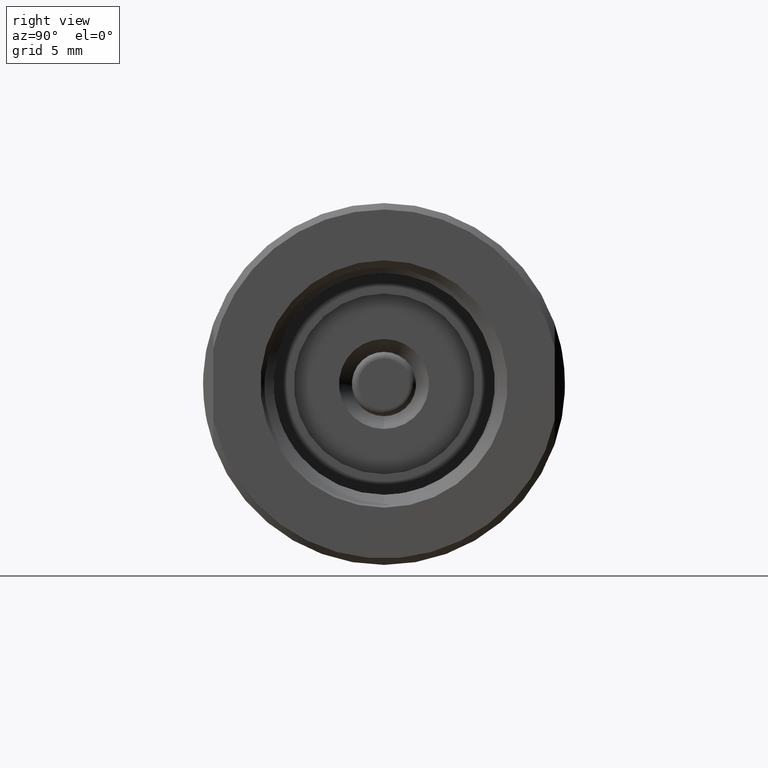
[diagram: clean part render]
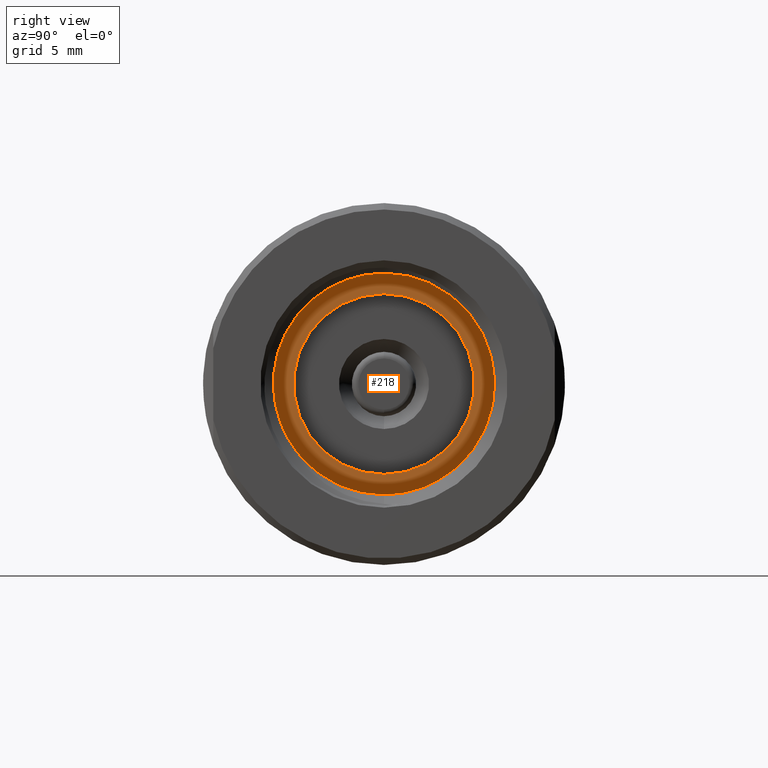
[diagram: same view with one face highlighted and labeled with its STEP entity id]
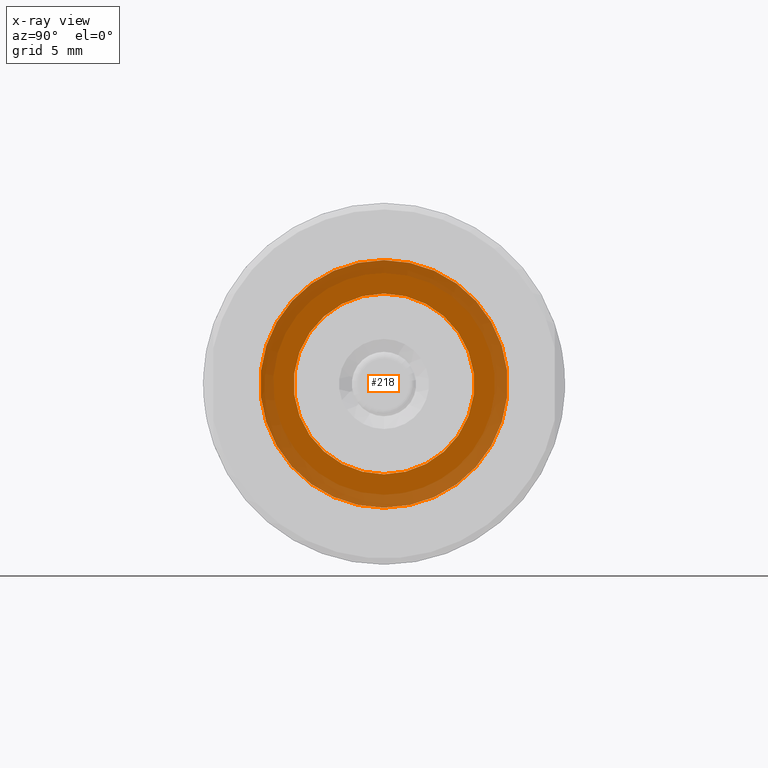
[diagram: x-ray of the same camera — body ghosted, the highlighted face saturated]
A machine part, right view. The second image highlights one B-rep face of the part: STEP entity #218.
The next image is the same camera in x-ray: the body ghosted, the highlighted face saturated — about 42% of this face is hidden behind the body in this view.
In plain terms, the highlighted planar face has unit normal (1, 0, 0).
Its self-contained STEP definition (entity closure, byte-faithful):
#86 = CIRCLE ( 'NONE', #477, 0.3850000000000001199 ) ;
#218 = ADVANCED_FACE ( 'NONE', ( #4071, #10511 ), #7800, .T. ) ;
#356 = DIRECTION ( 'NONE',  ( -1.000000000000000000, -0.0000000000000000000, -0.0000000000000000000 ) ) ;
#477 = AXIS2_PLACEMENT_3D ( 'NONE', #10318, #5555, #6521 ) ;
#711 = AXIS2_PLACEMENT_3D ( 'NONE', #10399, #356, #6852 ) ;
#896 = CIRCLE ( 'NONE', #711, 0.2810000000000001386 ) ;
#1375 = DIRECTION ( 'NONE',  ( 0.0000000000000000000, 0.0000000000000000000, -1.000000000000000000 ) ) ;
#1715 = CARTESIAN_POINT ( 'NONE',  ( 0.5000000000000000000, 0.0000000000000000000, 0.0000000000000000000 ) ) ;
#1790 = EDGE_LOOP ( 'NONE', ( #5705, #10188 ) ) ;
#1829 = DIRECTION ( 'NONE',  ( 0.0000000000000000000, 0.0000000000000000000, 1.000000000000000000 ) ) ;
#1956 = VERTEX_POINT ( 'NONE', #10958 ) ;
#2442 = AXIS2_PLACEMENT_3D ( 'NONE', #1715, #10911, #1829 ) ;
#3009 = CIRCLE ( 'NONE', #2442, 0.2810000000000001386 ) ;
#3050 = EDGE_LOOP ( 'NONE', ( #10070, #8534 ) ) ;
#3263 = CARTESIAN_POINT ( 'NONE',  ( 0.5000000000000000000, 3.441257505604064753E-17, -0.2810000000000001941 ) ) ;
#4018 = VERTEX_POINT ( 'NONE', #6865 ) ;
#4071 = FACE_BOUND ( 'NONE', #3050, .T. ) ;
#4287 = DIRECTION ( 'NONE',  ( 0.0000000000000000000, 0.0000000000000000000, 1.000000000000000000 ) ) ;
#5555 = DIRECTION ( 'NONE',  ( -1.000000000000000000, -0.0000000000000000000, -0.0000000000000000000 ) ) ;
#5607 = VERTEX_POINT ( 'NONE', #11824 ) ;
#5705 = ORIENTED_EDGE ( 'NONE', *, *, #7639, .F. ) ;
#5928 = CARTESIAN_POINT ( 'NONE',  ( 0.5000000000000000000, 0.0000000000000000000, 0.0000000000000000000 ) ) ;
#6521 = DIRECTION ( 'NONE',  ( 0.0000000000000000000, 0.0000000000000000000, 1.000000000000000000 ) ) ;
#6813 = AXIS2_PLACEMENT_3D ( 'NONE', #9944, #7299, #4287 ) ;
#6852 = DIRECTION ( 'NONE',  ( 0.0000000000000000000, 0.0000000000000000000, 1.000000000000000000 ) ) ;
#6865 = CARTESIAN_POINT ( 'NONE',  ( 0.5000000000000000000, 0.0000000000000000000, 0.3850000000000001199 ) ) ;
#6919 = EDGE_CURVE ( 'NONE', #1956, #4018, #86, .T. ) ;
#7299 = DIRECTION ( 'NONE',  ( -1.000000000000000000, -0.0000000000000000000, -0.0000000000000000000 ) ) ;
#7359 = VERTEX_POINT ( 'NONE', #3263 ) ;
#7639 = EDGE_CURVE ( 'NONE', #4018, #1956, #9128, .T. ) ;
#7800 = PLANE ( 'NONE',  #8754 ) ;
#8534 = ORIENTED_EDGE ( 'NONE', *, *, #11134, .T. ) ;
#8754 = AXIS2_PLACEMENT_3D ( 'NONE', #5928, #9605, #1375 ) ;
#9128 = CIRCLE ( 'NONE', #6813, 0.3850000000000001199 ) ;
#9605 = DIRECTION ( 'NONE',  ( 1.000000000000000000, 0.0000000000000000000, 0.0000000000000000000 ) ) ;
#9916 = EDGE_CURVE ( 'NONE', #5607, #7359, #896, .T. ) ;
#9944 = CARTESIAN_POINT ( 'NONE',  ( 0.5000000000000000000, 0.0000000000000000000, 0.0000000000000000000 ) ) ;
#10070 = ORIENTED_EDGE ( 'NONE', *, *, #9916, .T. ) ;
#10188 = ORIENTED_EDGE ( 'NONE', *, *, #6919, .F. ) ;
#10318 = CARTESIAN_POINT ( 'NONE',  ( 0.5000000000000000000, 0.0000000000000000000, 0.0000000000000000000 ) ) ;
#10399 = CARTESIAN_POINT ( 'NONE',  ( 0.5000000000000000000, 0.0000000000000000000, 0.0000000000000000000 ) ) ;
#10511 = FACE_OUTER_BOUND ( 'NONE', #1790, .T. ) ;
#10911 = DIRECTION ( 'NONE',  ( -1.000000000000000000, -0.0000000000000000000, -0.0000000000000000000 ) ) ;
#10958 = CARTESIAN_POINT ( 'NONE',  ( 0.5000000000000000000, 4.714890176717312350E-17, -0.3850000000000001199 ) ) ;
#11134 = EDGE_CURVE ( 'NONE', #7359, #5607, #3009, .T. ) ;
#11824 = CARTESIAN_POINT ( 'NONE',  ( 0.5000000000000000000, 0.0000000000000000000, 0.2810000000000001386 ) ) ;